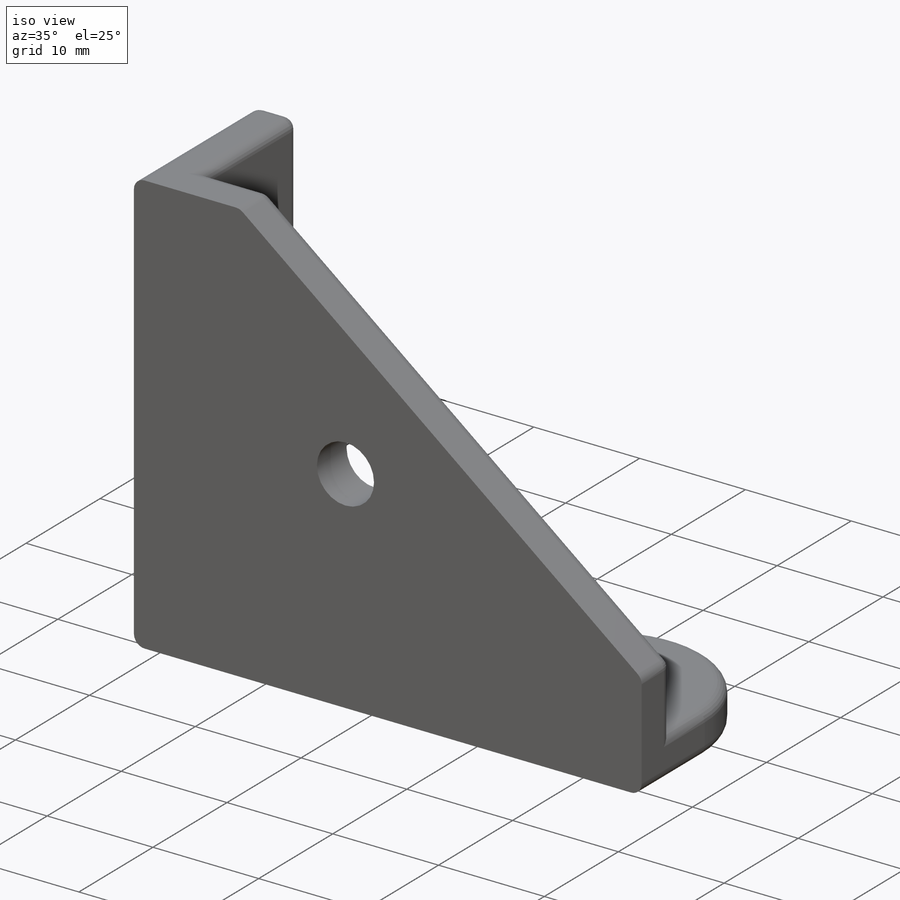
[diagram: iso view]
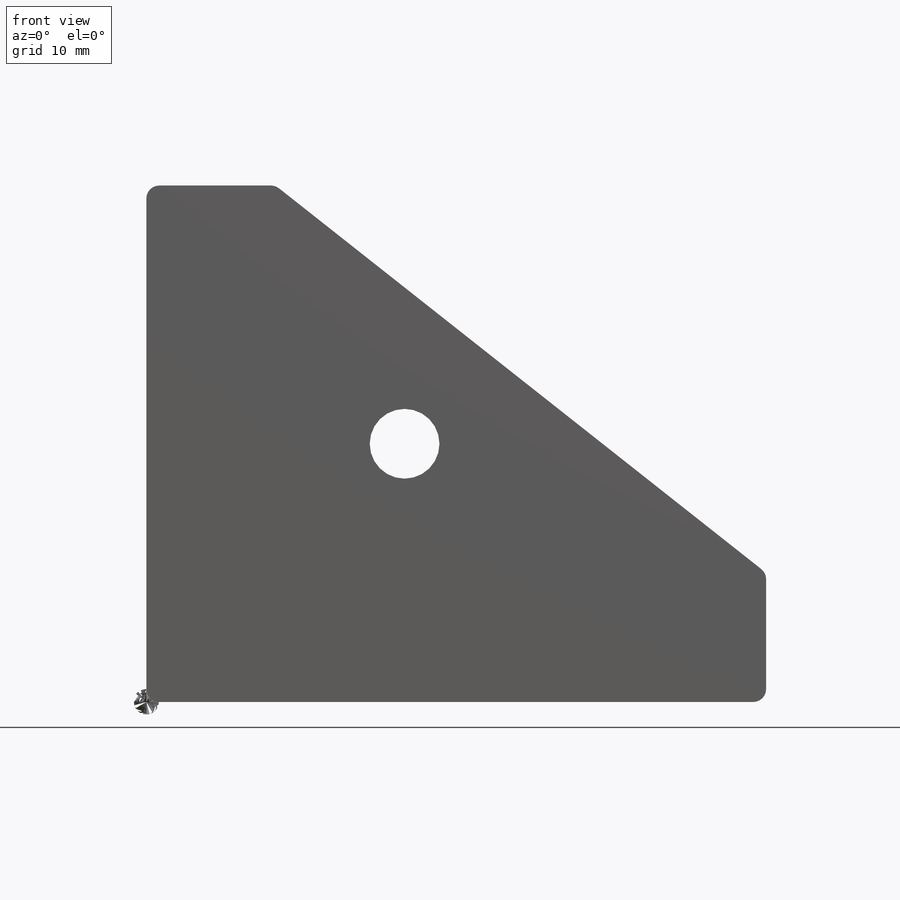
[diagram: front view]
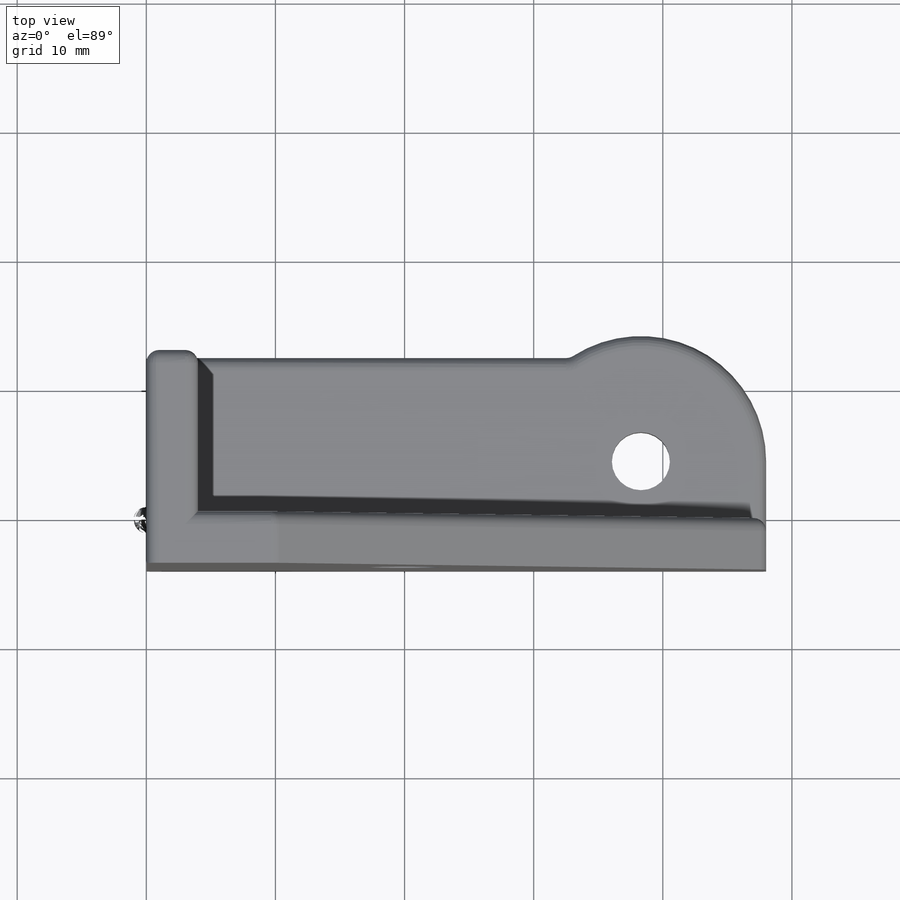
[diagram: top view]
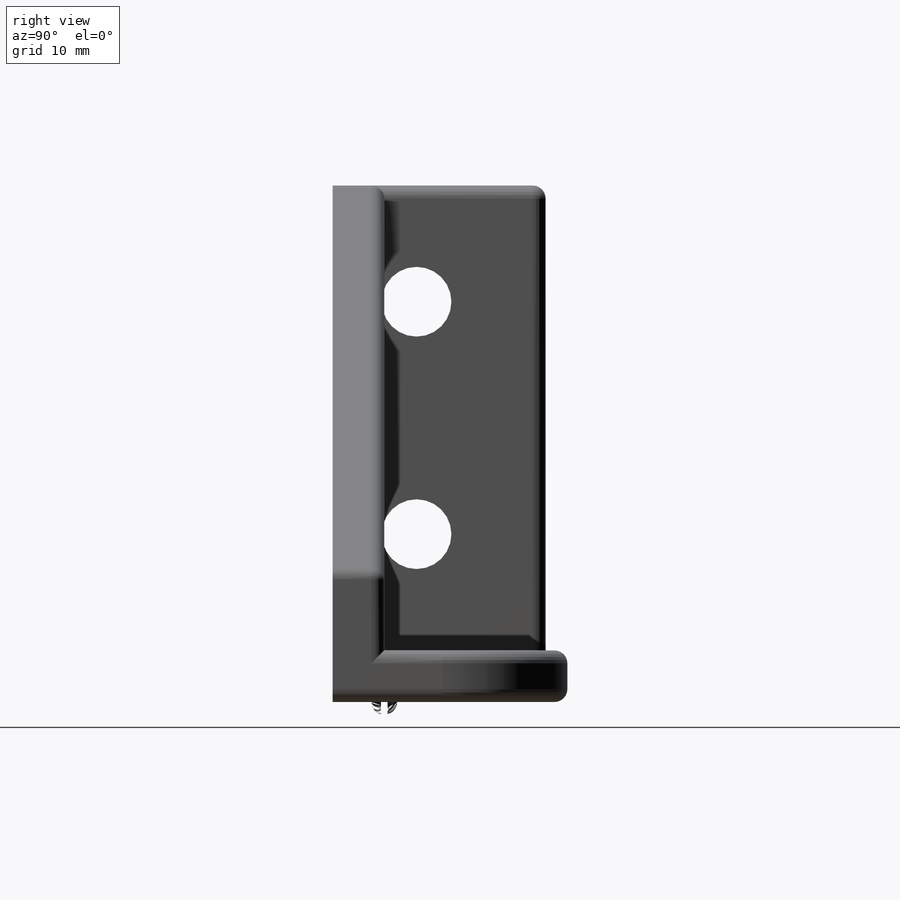
[diagram: right view]
SOLIDWORKS PART (.sldprt)
format: sldprt  version: not decoded by parser v0  size: 392,192 bytes
history: native  units: mm
features: sketch x8, cut_extrude x5, extrude x3, fillet x2, material x1, chamfer x1 (+13 scaffold rows collapsed)
feature tree (33):
  scaffold x13  (default folders/planes/origin — collapsed)
  material  "ABS"
  sketch  "Sketch1"  dims[D1=48.0mm D2=40.0mm D3=10.0mm D4=10.0mm]
  extrude  "Boss-Extrude1"  Depth=4mm
  sketch  "Sketch2"  dims[D1=4.0mm D2=4.0mm]
  extrude  "Boss-Extrude2"  Depth=12.5mm
  sketch  "Sketch4"  dims[c1.D2=5.4mm c1.D3=5.4mm c1.D5=5.4mm c1.D1=10.0mm c1.D4=13.0mm c2.D5=18.0mm]
  cut_extrude  "Cut-Extrude1"  [1 undecoded]
  sketch  "Sketch5"  dims[D1=9.5mm D2=9.5mm]
  cut_extrude  "Cut-Extrude2"  Depth=8mm
  chamfer  "Chamfer1"  Distance=2.5mm Angle=35deg
  fillet  "Fillet1"  Radius=1mm
  sketch  "Sketch6"  dims[c1.D1=4.5mm c1.D3=4.5mm c1.D2=38.3mm c2.D3=8.0mm]
  sketch  "Sketch8"
  extrude  "Boss-Extrude3"  [1 undecoded]
  cut_extrude  "Cut-Extrude3"  [1 undecoded]
  sketch  "Sketch8<3>"
  cut_extrude  "Cut-Extrude4"  [1 undecoded]
  fillet  "Fillet2"  Radius=1mm
  sketch  "Sketch9"  dims[c1.D1=~8.345459mm c1.D3=5.4mm c2.D1=20.0mm c2.D2=20.0mm]
  cut_extrude  "Cut-Extrude5"  [1 undecoded]
decode coverage: 12 of 19 modeling features carry decoded parameters
note: ~ marks probable driven/reference dimensions
note: 5 parameter values undecoded
summary: no parameter record found for 5 features
note: suppression state not decoded; provenance and decode notes live in map.json
